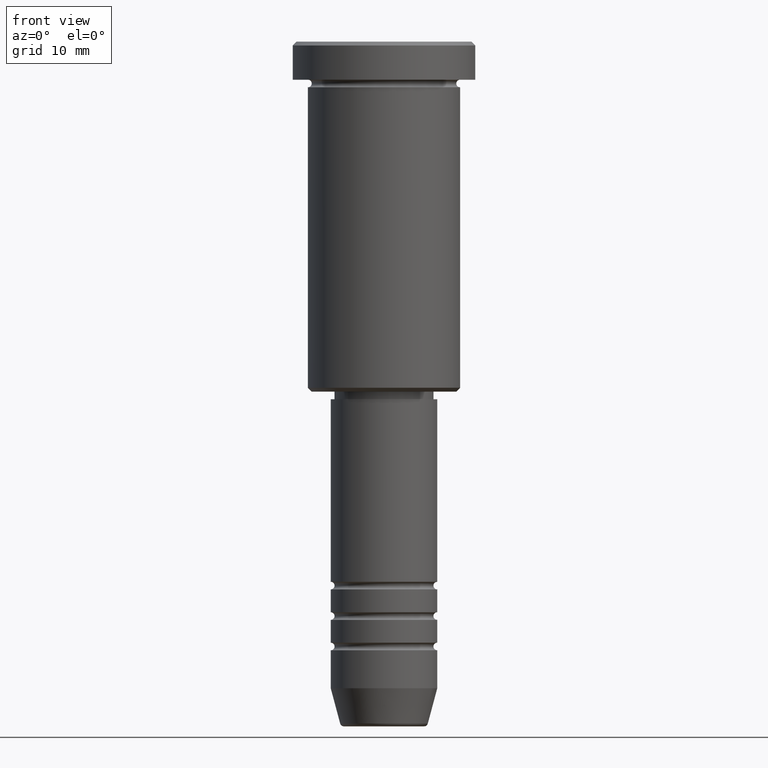
[diagram: clean part render]
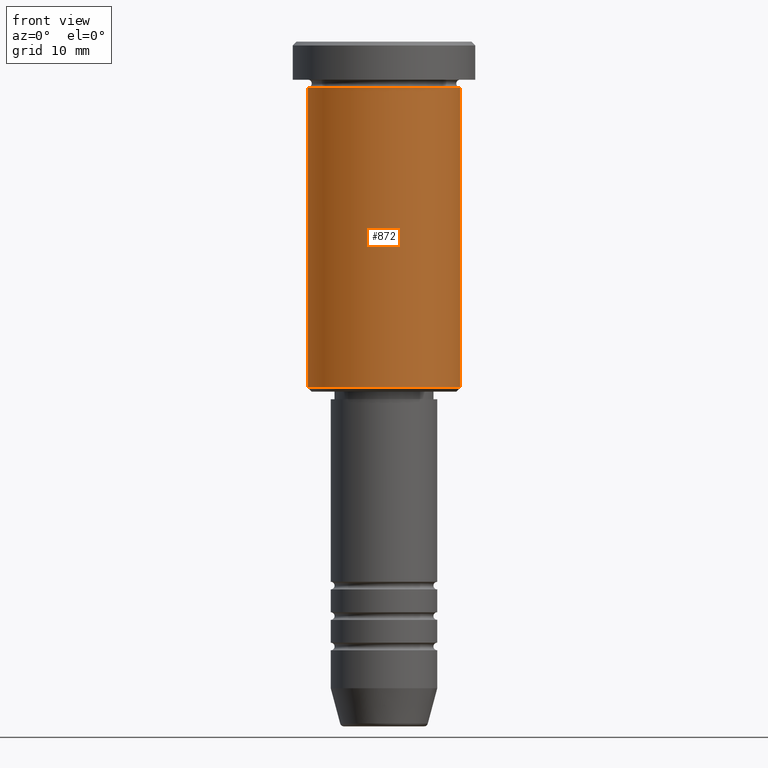
[diagram: same view with one face highlighted and labeled with its STEP entity id]
A machine part, front view. The second image highlights one B-rep face of the part: STEP entity #872.
In plain terms, the highlighted cylindrical surface (partial cylindrical patch) has radius 10 mm, axis along (-0, -0, 1).
Its self-contained STEP definition (entity closure, byte-faithful):
#12 = CARTESIAN_POINT ( 'NONE',  ( 0.000000000000000000, 0.000000000000000000, -6.000000000000000000 ) ) ;
#13 = CARTESIAN_POINT ( 'NONE',  ( -9.999999999999998224, 1.224646799147353059E-15, -45.50000000000000000 ) ) ;
#16 = VERTEX_POINT ( 'NONE', #316 ) ;
#43 = VECTOR ( 'NONE', #568, 1000.000000000000000 ) ;
#44 = ORIENTED_EDGE ( 'NONE', *, *, #1069, .F. ) ;
#56 = VERTEX_POINT ( 'NONE', #256 ) ;
#89 = VERTEX_POINT ( 'NONE', #902 ) ;
#152 = ORIENTED_EDGE ( 'NONE', *, *, #836, .F. ) ;
#170 = DIRECTION ( 'NONE',  ( 1.000000000000000000, 0.000000000000000000, 0.000000000000000000 ) ) ;
#175 = CARTESIAN_POINT ( 'NONE',  ( -9.999999999999998224, 1.224646799147353059E-15, 0.000000000000000000 ) ) ;
#256 = CARTESIAN_POINT ( 'NONE',  ( 10.00000000000000000, 0.000000000000000000, -6.000000000000000000 ) ) ;
#307 = ORIENTED_EDGE ( 'NONE', *, *, #783, .T. ) ;
#316 = CARTESIAN_POINT ( 'NONE',  ( -10.00000000000000000, 1.224646799147353256E-15, -6.000000000000000000 ) ) ;
#338 = FACE_OUTER_BOUND ( 'NONE', #1131, .T. ) ;
#376 = DIRECTION ( 'NONE',  ( -0.000000000000000000, -0.000000000000000000, 1.000000000000000000 ) ) ;
#381 = CIRCLE ( 'NONE', #992, 10.00000000000000000 ) ;
#462 = CARTESIAN_POINT ( 'NONE',  ( 0.000000000000000000, 0.000000000000000000, -45.50000000000000000 ) ) ;
#505 = ORIENTED_EDGE ( 'NONE', *, *, #1033, .T. ) ;
#516 = LINE ( 'NONE', #175, #663 ) ;
#529 = DIRECTION ( 'NONE',  ( -0.000000000000000000, -0.000000000000000000, 1.000000000000000000 ) ) ;
#568 = DIRECTION ( 'NONE',  ( -0.000000000000000000, -0.000000000000000000, 1.000000000000000000 ) ) ;
#621 = CARTESIAN_POINT ( 'NONE',  ( 0.000000000000000000, 0.000000000000000000, 0.000000000000000000 ) ) ;
#655 = VERTEX_POINT ( 'NONE', #13 ) ;
#663 = VECTOR ( 'NONE', #971, 1000.000000000000000 ) ;
#706 = CYLINDRICAL_SURFACE ( 'NONE', #1003, 9.999999999999998224 ) ;
#783 = EDGE_CURVE ( 'NONE', #89, #56, #1107, .T. ) ;
#826 = DIRECTION ( 'NONE',  ( -1.000000000000000000, 0.000000000000000000, 0.000000000000000000 ) ) ;
#836 = EDGE_CURVE ( 'NONE', #655, #16, #516, .T. ) ;
#850 = DIRECTION ( 'NONE',  ( 1.000000000000000000, 0.000000000000000000, 0.000000000000000000 ) ) ;
#872 = ADVANCED_FACE ( 'NONE', ( #338 ), #706, .T. ) ;
#897 = DIRECTION ( 'NONE',  ( -0.000000000000000000, -0.000000000000000000, 1.000000000000000000 ) ) ;
#902 = CARTESIAN_POINT ( 'NONE',  ( 9.999999999999998224, 0.000000000000000000, -45.50000000000000000 ) ) ;
#971 = DIRECTION ( 'NONE',  ( -0.000000000000000000, -0.000000000000000000, 1.000000000000000000 ) ) ;
#981 = AXIS2_PLACEMENT_3D ( 'NONE', #462, #897, #826 ) ;
#992 = AXIS2_PLACEMENT_3D ( 'NONE', #12, #376, #850 ) ;
#1003 = AXIS2_PLACEMENT_3D ( 'NONE', #621, #529, #170 ) ;
#1020 = CARTESIAN_POINT ( 'NONE',  ( 9.999999999999998224, 0.000000000000000000, 0.000000000000000000 ) ) ;
#1033 = EDGE_CURVE ( 'NONE', #655, #89, #1044, .T. ) ;
#1044 = CIRCLE ( 'NONE', #981, 9.999999999999998224 ) ;
#1069 = EDGE_CURVE ( 'NONE', #16, #56, #381, .T. ) ;
#1107 = LINE ( 'NONE', #1020, #43 ) ;
#1131 = EDGE_LOOP ( 'NONE', ( #152, #505, #307, #44 ) ) ;